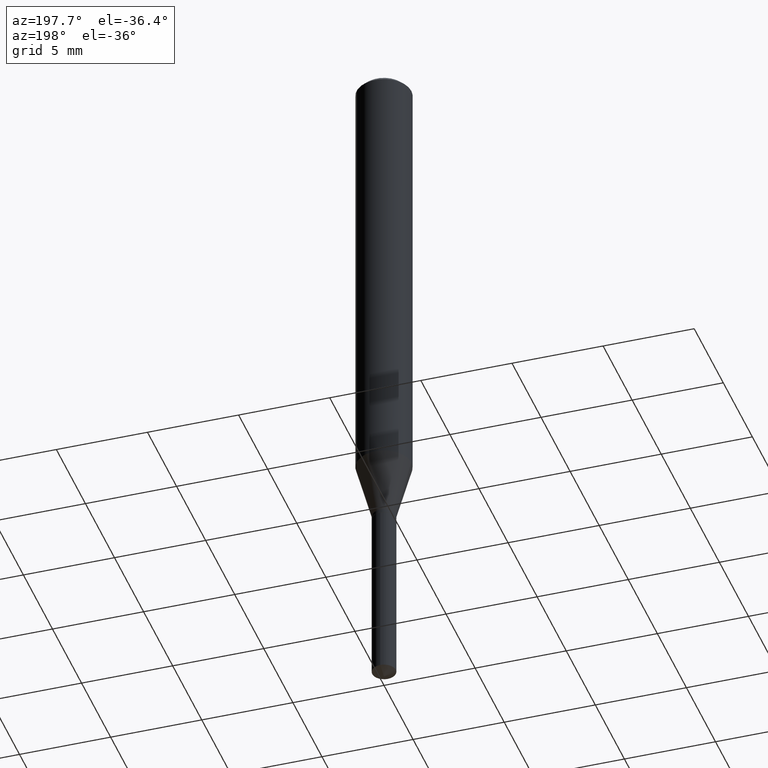
[diagram: clean part render]
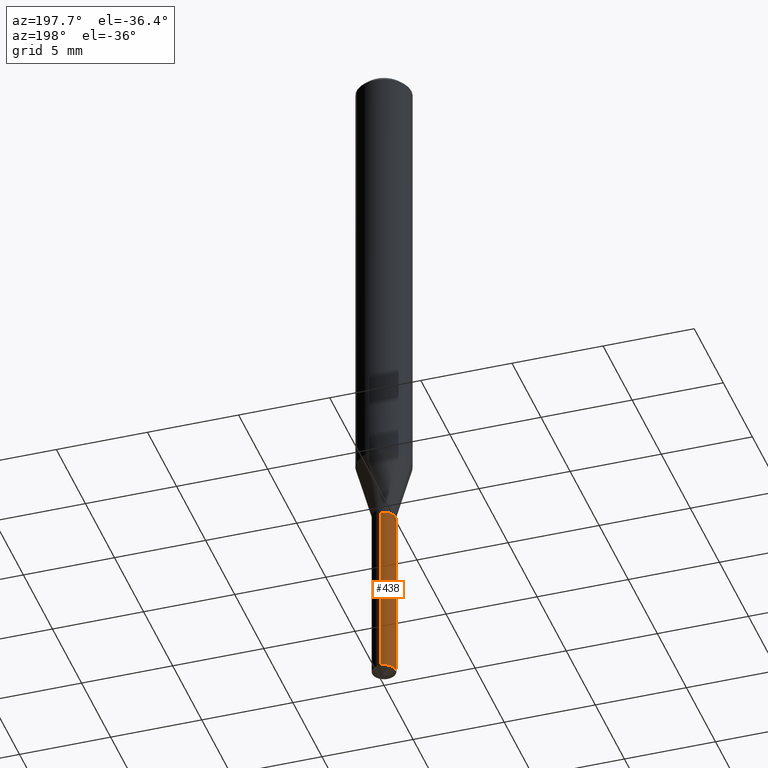
[diagram: same view with one face highlighted and labeled with its STEP entity id]
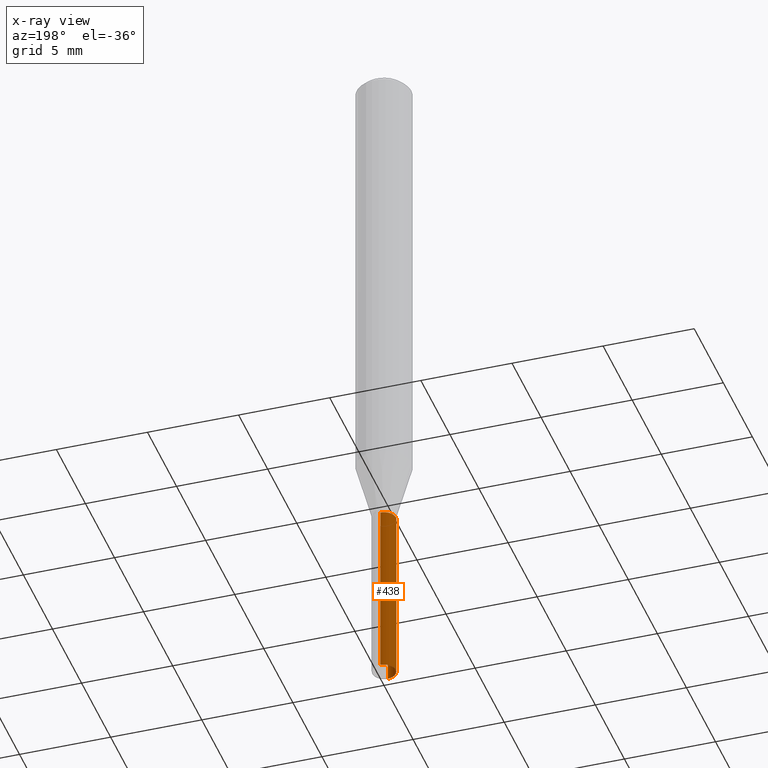
[diagram: x-ray of the same camera — body ghosted, the highlighted face saturated]
A machine part, auxiliary view. The second image highlights one B-rep face of the part: STEP entity #438.
The next image is the same camera in x-ray: the body ghosted, the highlighted face saturated — about 0% of this face is hidden behind the body in this view.
In plain terms, the highlighted cylindrical surface (edge-blend (fillet) strip) has radius 0.6452 mm, axis along (-0, 0, 1).
Its self-contained STEP definition (entity closure, byte-faithful):
#1 = CARTESIAN_POINT ( 'NONE',  ( 2.676565608369631794E-29, -3.821426325363822773E-15, -1.094499999999999806 ) ) ;
#2 = EDGE_CURVE ( 'NONE', #43, #443, #195, .T. ) ;
#23 = CYLINDRICAL_SURFACE ( 'NONE', #140, 0.02539999999999999897 ) ;
#28 = EDGE_LOOP ( 'NONE', ( #179, #315, #173, #482 ) ) ;
#36 = DIRECTION ( 'NONE',  ( -6.982962677686265922E-15, -1.000000000000000000, 0.000000000000000000 ) ) ;
#43 = VERTEX_POINT ( 'NONE', #149 ) ;
#51 = VECTOR ( 'NONE', #247, 39.37007874015748143 ) ;
#54 = EDGE_CURVE ( 'NONE', #43, #398, #442, .T. ) ;
#68 = LINE ( 'NONE', #224, #51 ) ;
#72 = DIRECTION ( 'NONE',  ( -2.445470214571802116E-29, 3.491479321953280158E-15, 1.000000000000000000 ) ) ;
#99 = CARTESIAN_POINT ( 'NONE',  ( -1.773672520132044001E-16, -0.02540000000000381883, -1.094499999999999806 ) ) ;
#113 = DIRECTION ( 'NONE',  ( -6.982962677686265922E-15, -1.000000000000000000, 5.377653530835164164E-15 ) ) ;
#116 = DIRECTION ( 'NONE',  ( -2.445470214571802396E-29, 3.491479321953280158E-15, 1.000000000000000000 ) ) ;
#122 = EDGE_CURVE ( 'NONE', #443, #368, #139, .T. ) ;
#134 = FACE_OUTER_BOUND ( 'NONE', #28, .T. ) ;
#139 = CIRCLE ( 'NONE', #422, 0.02539999999999999897 ) ;
#140 = AXIS2_PLACEMENT_3D ( 'NONE', #210, #373, #175 ) ;
#149 = CARTESIAN_POINT ( 'NONE',  ( 1.804778548831017275E-16, 0.02539999999999480867, -1.484255785482863077 ) ) ;
#170 = EDGE_CURVE ( 'NONE', #398, #368, #68, .T. ) ;
#173 = ORIENTED_EDGE ( 'NONE', *, *, #170, .T. ) ;
#175 = DIRECTION ( 'NONE',  ( -6.982962677686265922E-15, -1.000000000000000000, 5.377653530835164164E-15 ) ) ;
#179 = ORIENTED_EDGE ( 'NONE', *, *, #2, .F. ) ;
#195 = LINE ( 'NONE', #384, #248 ) ;
#210 = CARTESIAN_POINT ( 'NONE',  ( 2.676565608369631794E-29, -3.821426325363822773E-15, -1.094499999999999806 ) ) ;
#224 = CARTESIAN_POINT ( 'NONE',  ( -1.773672520132044001E-16, -0.02540000000000381883, -1.094499999999999806 ) ) ;
#230 = AXIS2_PLACEMENT_3D ( 'NONE', #347, #72, #36 ) ;
#247 = DIRECTION ( 'NONE',  ( -2.445470214571802396E-29, 3.491479321953280158E-15, 1.000000000000000000 ) ) ;
#248 = VECTOR ( 'NONE', #116, 39.37007874015748143 ) ;
#315 = ORIENTED_EDGE ( 'NONE', *, *, #54, .T. ) ;
#347 = CARTESIAN_POINT ( 'NONE',  ( 3.629701772725010767E-29, -5.182250590988897137E-15, -1.484255785482863077 ) ) ;
#368 = VERTEX_POINT ( 'NONE', #99 ) ;
#373 = DIRECTION ( 'NONE',  ( -2.445470214571802116E-29, 3.491479321953280158E-15, 1.000000000000000000 ) ) ;
#384 = CARTESIAN_POINT ( 'NONE',  ( 1.804778548830921625E-16, 0.02539999999999617911, -1.094500000000000028 ) ) ;
#398 = VERTEX_POINT ( 'NONE', #471 ) ;
#416 = DIRECTION ( 'NONE',  ( -2.445470214571802116E-29, 3.491479321953280158E-15, 1.000000000000000000 ) ) ;
#422 = AXIS2_PLACEMENT_3D ( 'NONE', #1, #416, #113 ) ;
#438 = ADVANCED_FACE ( 'NONE', ( #134 ), #23, .T. ) ;
#442 = CIRCLE ( 'NONE', #230, 0.02539999999999999897 ) ;
#443 = VERTEX_POINT ( 'NONE', #476 ) ;
#471 = CARTESIAN_POINT ( 'NONE',  ( -1.773672520131948105E-16, -0.02540000000000517885, -1.484255785482863077 ) ) ;
#476 = CARTESIAN_POINT ( 'NONE',  ( 1.804778548831018014E-16, 0.02539999999999617911, -1.094500000000000028 ) ) ;
#482 = ORIENTED_EDGE ( 'NONE', *, *, #122, .F. ) ;